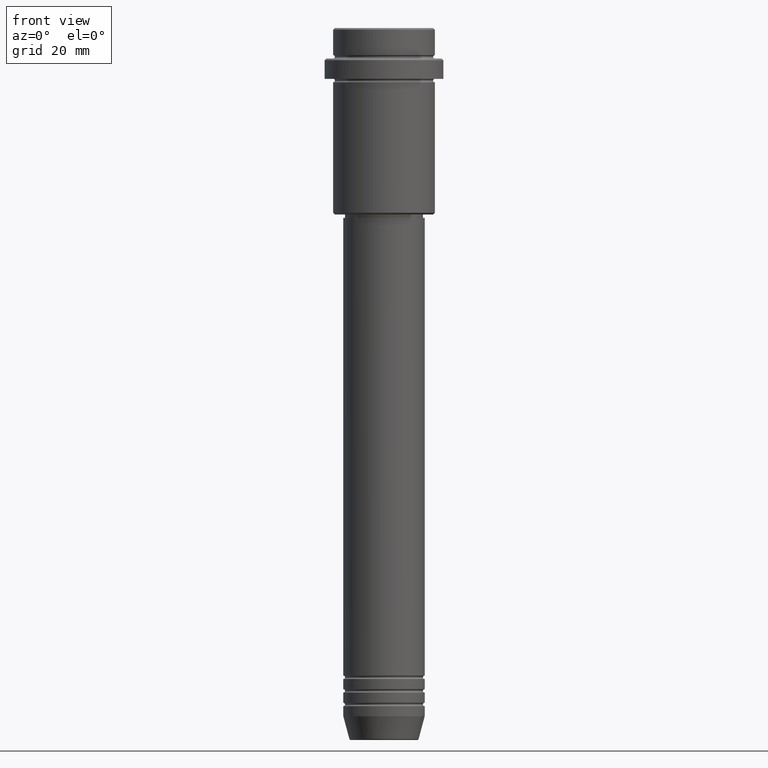
[diagram: clean part render]
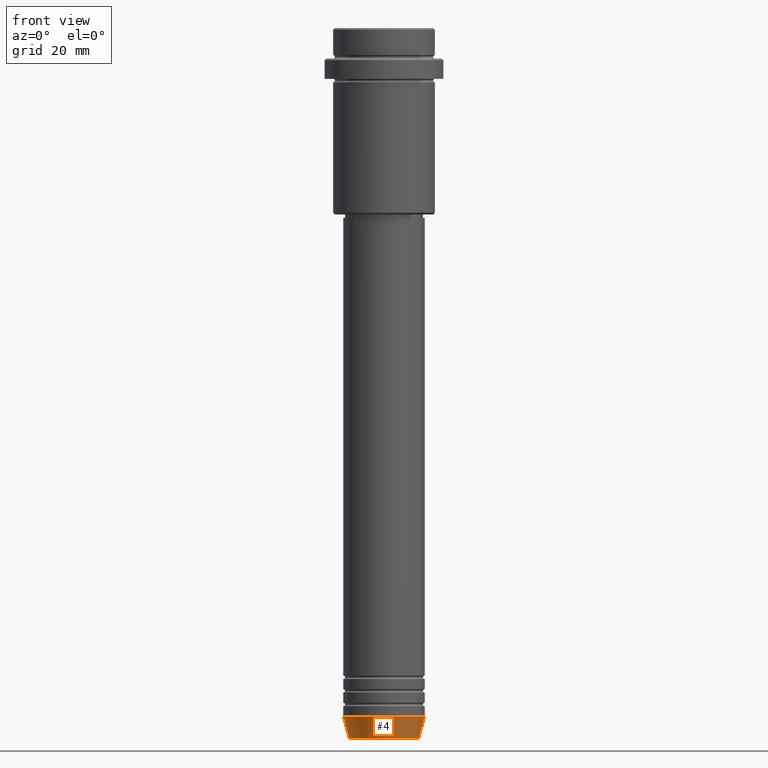
[diagram: same view with one face highlighted and labeled with its STEP entity id]
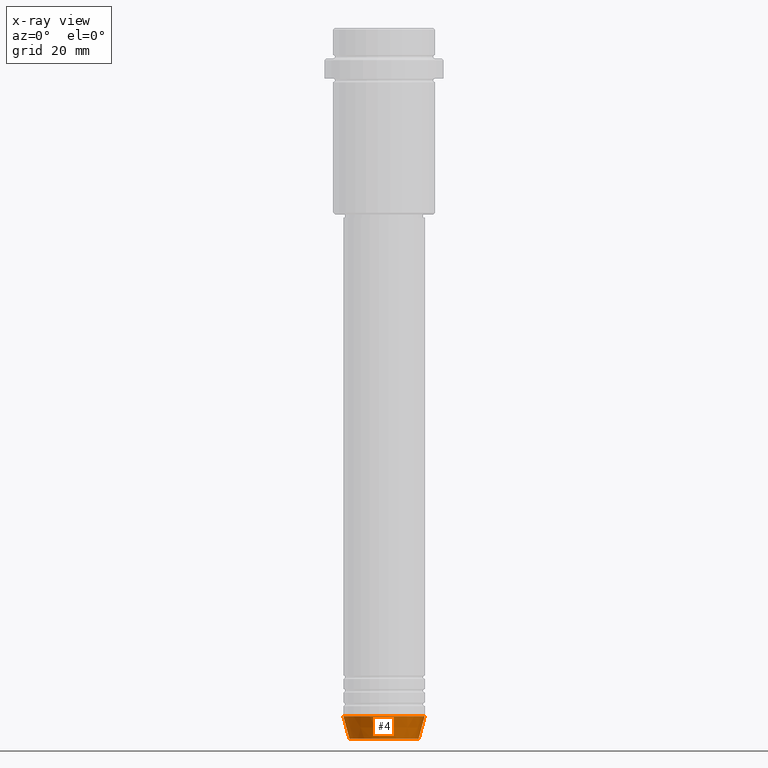
[diagram: x-ray of the same camera — body ghosted, the highlighted face saturated]
A machine part, front view. The second image highlights one B-rep face of the part: STEP entity #4.
The next image is the same camera in x-ray: the body ghosted, the highlighted face saturated — about 0% of this face is hidden behind the body in this view.
In plain terms, the highlighted conical surface has half-angle 15 deg.
Its self-contained STEP definition (entity closure, byte-faithful):
#4 = ADVANCED_FACE ( 'NONE', ( #894 ), #171, .T. ) ;
#52 = DIRECTION ( 'NONE',  ( -0.2588190451025213501, 3.169619151431772337E-17, 0.9659258262890680902 ) ) ;
#53 = VERTEX_POINT ( 'NONE', #787 ) ;
#54 = AXIS2_PLACEMENT_3D ( 'NONE', #794, #371, #808 ) ;
#153 = CARTESIAN_POINT ( 'NONE',  ( 0.000000000000000000, 0.000000000000000000, -209.6294095225512706 ) ) ;
#159 = DIRECTION ( 'NONE',  ( -0.000000000000000000, -0.000000000000000000, 1.000000000000000000 ) ) ;
#162 = CARTESIAN_POINT ( 'NONE',  ( -12.00000000000000000, 1.469576158976823947E-15, -203.0000000000000000 ) ) ;
#171 = CONICAL_SURFACE ( 'NONE', #54, 12.00000000000000000, 0.2617993877991500740 ) ;
#266 = CARTESIAN_POINT ( 'NONE',  ( -12.00000000000000000, 1.469576158976823947E-15, -203.0000000000000000 ) ) ;
#277 = DIRECTION ( 'NONE',  ( 0.2588190451025213501, 0.000000000000000000, 0.9659258262890680902 ) ) ;
#289 = CIRCLE ( 'NONE', #705, 12.00000000000000000 ) ;
#331 = ORIENTED_EDGE ( 'NONE', *, *, #1016, .T. ) ;
#333 = DIRECTION ( 'NONE',  ( -0.000000000000000000, -0.000000000000000000, 1.000000000000000000 ) ) ;
#348 = DIRECTION ( 'NONE',  ( 1.000000000000000000, 0.000000000000000000, 0.000000000000000000 ) ) ;
#371 = DIRECTION ( 'NONE',  ( -0.000000000000000000, -0.000000000000000000, 1.000000000000000000 ) ) ;
#395 = EDGE_CURVE ( 'NONE', #53, #748, #586, .T. ) ;
#409 = VERTEX_POINT ( 'NONE', #1109 ) ;
#440 = LINE ( 'NONE', #1208, #1308 ) ;
#586 = LINE ( 'NONE', #162, #1092 ) ;
#636 = ORIENTED_EDGE ( 'NONE', *, *, #395, .F. ) ;
#705 = AXIS2_PLACEMENT_3D ( 'NONE', #1332, #159, #785 ) ;
#748 = VERTEX_POINT ( 'NONE', #266 ) ;
#763 = VERTEX_POINT ( 'NONE', #1118 ) ;
#785 = DIRECTION ( 'NONE',  ( 1.000000000000000000, 0.000000000000000000, 0.000000000000000000 ) ) ;
#787 = CARTESIAN_POINT ( 'NONE',  ( -10.22365507213719127, 1.360806402472382744E-15, -209.6294095225512706 ) ) ;
#794 = CARTESIAN_POINT ( 'NONE',  ( 0.000000000000000000, 0.000000000000000000, -203.0000000000000000 ) ) ;
#808 = DIRECTION ( 'NONE',  ( 1.000000000000000000, 0.000000000000000000, 0.000000000000000000 ) ) ;
#853 = ORIENTED_EDGE ( 'NONE', *, *, #966, .T. ) ;
#894 = FACE_OUTER_BOUND ( 'NONE', #1277, .T. ) ;
#966 = EDGE_CURVE ( 'NONE', #53, #409, #1142, .T. ) ;
#1016 = EDGE_CURVE ( 'NONE', #409, #763, #440, .T. ) ;
#1092 = VECTOR ( 'NONE', #52, 1000.000000000000000 ) ;
#1109 = CARTESIAN_POINT ( 'NONE',  ( 10.22365507213719127, 0.000000000000000000, -209.6294095225512706 ) ) ;
#1118 = CARTESIAN_POINT ( 'NONE',  ( 12.00000000000000000, 0.000000000000000000, -203.0000000000000000 ) ) ;
#1142 = CIRCLE ( 'NONE', #1331, 10.22365507213719127 ) ;
#1208 = CARTESIAN_POINT ( 'NONE',  ( 12.00000000000000000, 0.000000000000000000, -203.0000000000000000 ) ) ;
#1252 = ORIENTED_EDGE ( 'NONE', *, *, #1325, .F. ) ;
#1277 = EDGE_LOOP ( 'NONE', ( #636, #853, #331, #1252 ) ) ;
#1308 = VECTOR ( 'NONE', #277, 1000.000000000000000 ) ;
#1325 = EDGE_CURVE ( 'NONE', #748, #763, #289, .T. ) ;
#1331 = AXIS2_PLACEMENT_3D ( 'NONE', #153, #333, #348 ) ;
#1332 = CARTESIAN_POINT ( 'NONE',  ( 0.000000000000000000, 0.000000000000000000, -203.0000000000000000 ) ) ;